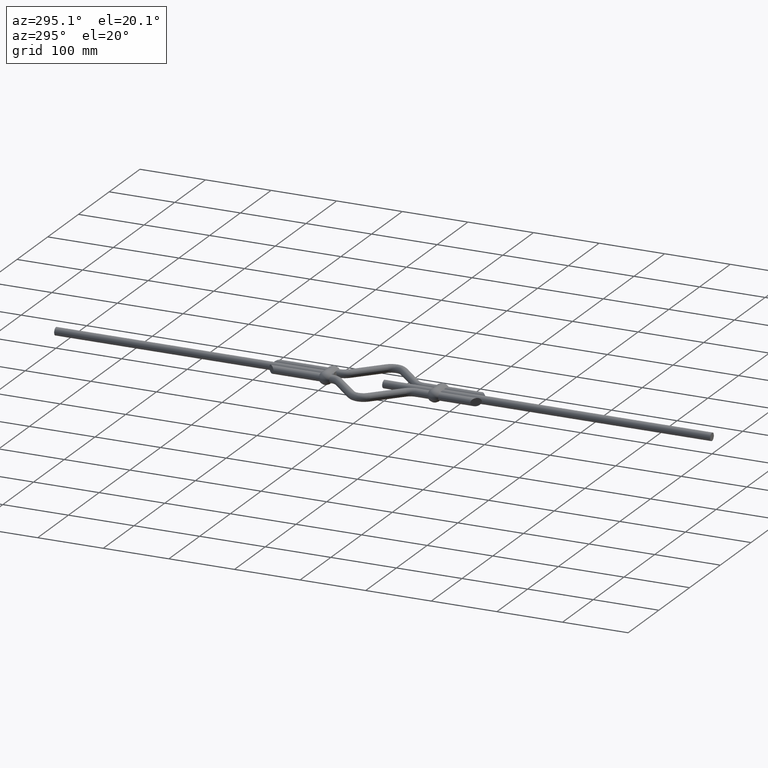
[diagram: clean part render]
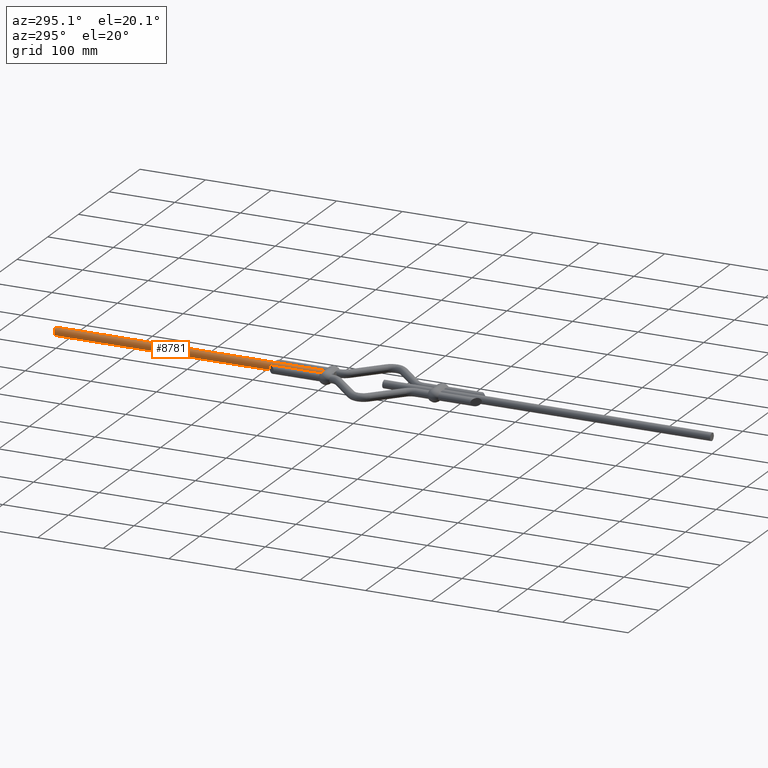
[diagram: same view with one face highlighted and labeled with its STEP entity id]
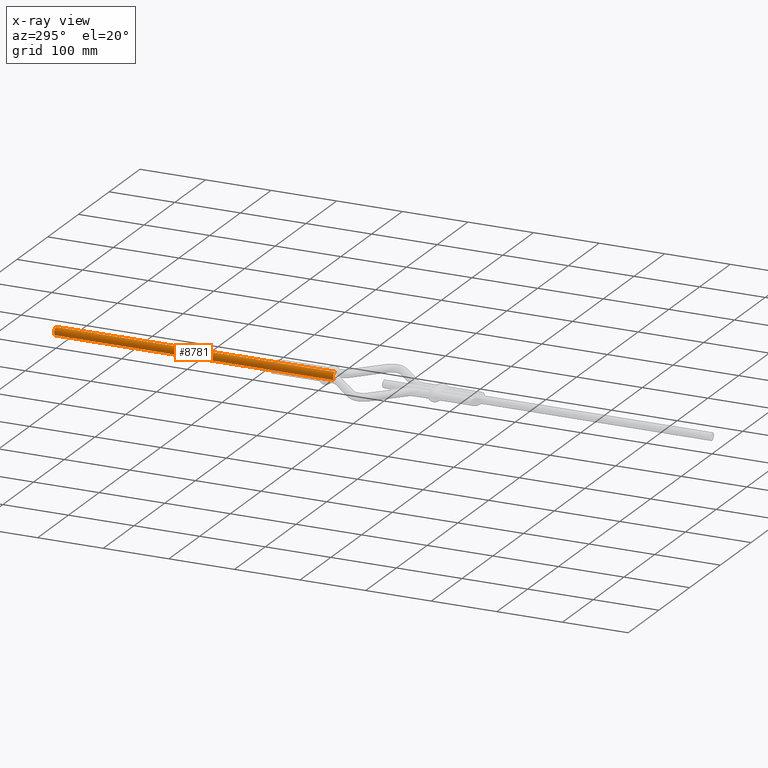
[diagram: x-ray of the same camera — body ghosted, the highlighted face saturated]
A machine part, auxiliary view. The second image highlights one B-rep face of the part: STEP entity #8781.
The next image is the same camera in x-ray: the body ghosted, the highlighted face saturated — about 0% of this face is hidden behind the body in this view.
In plain terms, the highlighted cylindrical surface (edge-blend (fillet) strip) has radius 6 mm, axis along (-0, -1, -0).
Its self-contained STEP definition (entity closure, byte-faithful):
#208 = EDGE_CURVE ( 'NONE', #1648, #1028, #10010, .T. ) ;
#630 = CARTESIAN_POINT ( 'NONE',  ( 0.0000000000000000000, 1000.000000000000000, 0.0000000000000000000 ) ) ;
#860 = CARTESIAN_POINT ( 'NONE',  ( 7.347880794884048700E-016, 575.0000000000000000, 5.999999999999943200 ) ) ;
#895 = DIRECTION ( 'NONE',  ( 0.0000000000000000000, 1.000000000000000000, 0.0000000000000000000 ) ) ;
#1014 = DIRECTION ( 'NONE',  ( 0.0000000000000000000, 1.000000000000000000, 0.0000000000000000000 ) ) ;
#1028 = VERTEX_POINT ( 'NONE', #860 ) ;
#1280 = EDGE_CURVE ( 'NONE', #14684, #1648, #6618, .T. ) ;
#1648 = VERTEX_POINT ( 'NONE', #11711 ) ;
#1939 = DIRECTION ( 'NONE',  ( 0.0000000000000000000, 0.0000000000000000000, -1.000000000000000000 ) ) ;
#2336 = DIRECTION ( 'NONE',  ( -0.0000000000000000000, -1.000000000000000000, -0.0000000000000000000 ) ) ;
#3464 = DIRECTION ( 'NONE',  ( 0.0000000000000000000, 0.0000000000000000000, 1.000000000000000000 ) ) ;
#3538 = CARTESIAN_POINT ( 'NONE',  ( 7.347880794884048700E-016, 1000.000000000000000, 5.999999999999943200 ) ) ;
#4584 = EDGE_CURVE ( 'NONE', #14684, #12172, #6426, .T. ) ;
#4853 = EDGE_LOOP ( 'NONE', ( #7494, #16012, #12586, #5300 ) ) ;
#5300 = ORIENTED_EDGE ( 'NONE', *, *, #208, .T. ) ;
#6214 = VECTOR ( 'NONE', #7990, 1000.000000000000000 ) ;
#6426 = CIRCLE ( 'NONE', #7271, 5.999999999999943200 ) ;
#6618 = LINE ( 'NONE', #11696, #6214 ) ;
#7271 = AXIS2_PLACEMENT_3D ( 'NONE', #8292, #895, #3464 ) ;
#7494 = ORIENTED_EDGE ( 'NONE', *, *, #14014, .F. ) ;
#7990 = DIRECTION ( 'NONE',  ( -0.0000000000000000000, -1.000000000000000000, -0.0000000000000000000 ) ) ;
#8292 = CARTESIAN_POINT ( 'NONE',  ( 0.0000000000000000000, 1000.000000000000000, 0.0000000000000000000 ) ) ;
#8420 = CARTESIAN_POINT ( 'NONE',  ( 7.347880794884048700E-016, 1000.000000000000000, 5.999999999999943200 ) ) ;
#8781 = ADVANCED_FACE ( 'NONE', ( #11636 ), #10467, .T. ) ;
#10010 = CIRCLE ( 'NONE', #10369, 5.999999999999943200 ) ;
#10369 = AXIS2_PLACEMENT_3D ( 'NONE', #12176, #1014, #13532 ) ;
#10467 = CYLINDRICAL_SURFACE ( 'NONE', #13968, 5.999999999999943200 ) ;
#11636 = FACE_OUTER_BOUND ( 'NONE', #4853, .T. ) ;
#11696 = CARTESIAN_POINT ( 'NONE',  ( 0.0000000000000000000, 1000.000000000000000, -5.999999999999943200 ) ) ;
#11711 = CARTESIAN_POINT ( 'NONE',  ( 0.0000000000000000000, 575.0000000000000000, -5.999999999999943200 ) ) ;
#12172 = VERTEX_POINT ( 'NONE', #8420 ) ;
#12176 = CARTESIAN_POINT ( 'NONE',  ( 0.0000000000000000000, 575.0000000000000000, 0.0000000000000000000 ) ) ;
#12508 = LINE ( 'NONE', #3538, #14629 ) ;
#12586 = ORIENTED_EDGE ( 'NONE', *, *, #1280, .T. ) ;
#13532 = DIRECTION ( 'NONE',  ( 0.0000000000000000000, 0.0000000000000000000, 1.000000000000000000 ) ) ;
#13968 = AXIS2_PLACEMENT_3D ( 'NONE', #630, #14346, #1939 ) ;
#14014 = EDGE_CURVE ( 'NONE', #12172, #1028, #12508, .T. ) ;
#14068 = CARTESIAN_POINT ( 'NONE',  ( 0.0000000000000000000, 1000.000000000000000, -5.999999999999943200 ) ) ;
#14346 = DIRECTION ( 'NONE',  ( -0.0000000000000000000, -1.000000000000000000, -0.0000000000000000000 ) ) ;
#14629 = VECTOR ( 'NONE', #2336, 1000.000000000000000 ) ;
#14684 = VERTEX_POINT ( 'NONE', #14068 ) ;
#16012 = ORIENTED_EDGE ( 'NONE', *, *, #4584, .F. ) ;